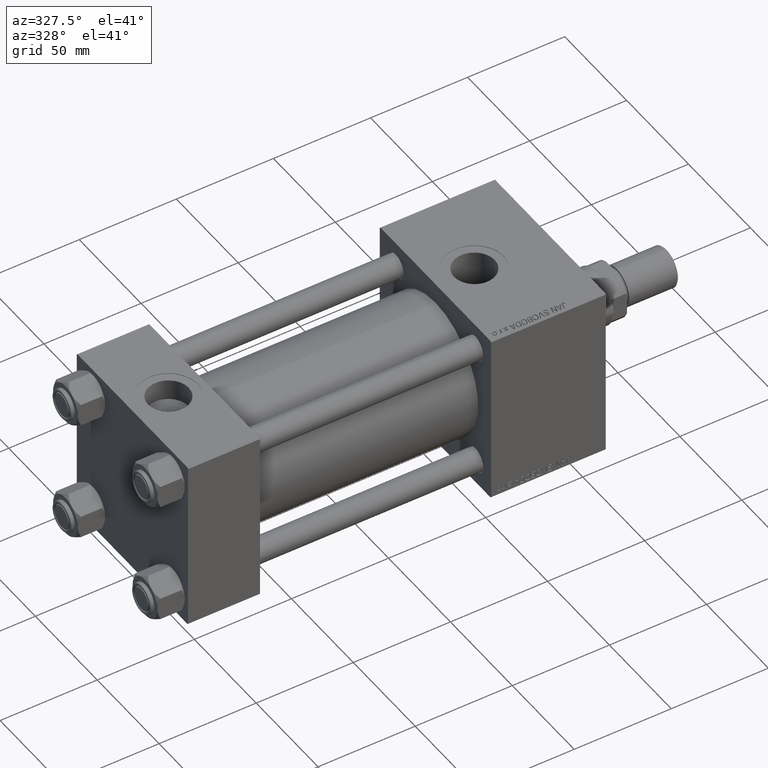
[diagram: clean part render]
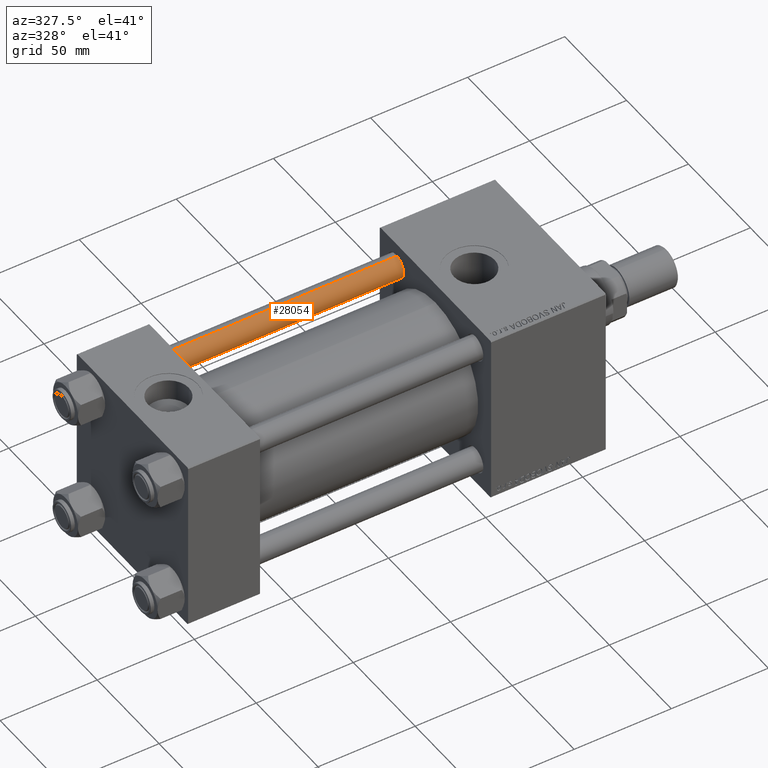
[diagram: same view with one face highlighted and labeled with its STEP entity id]
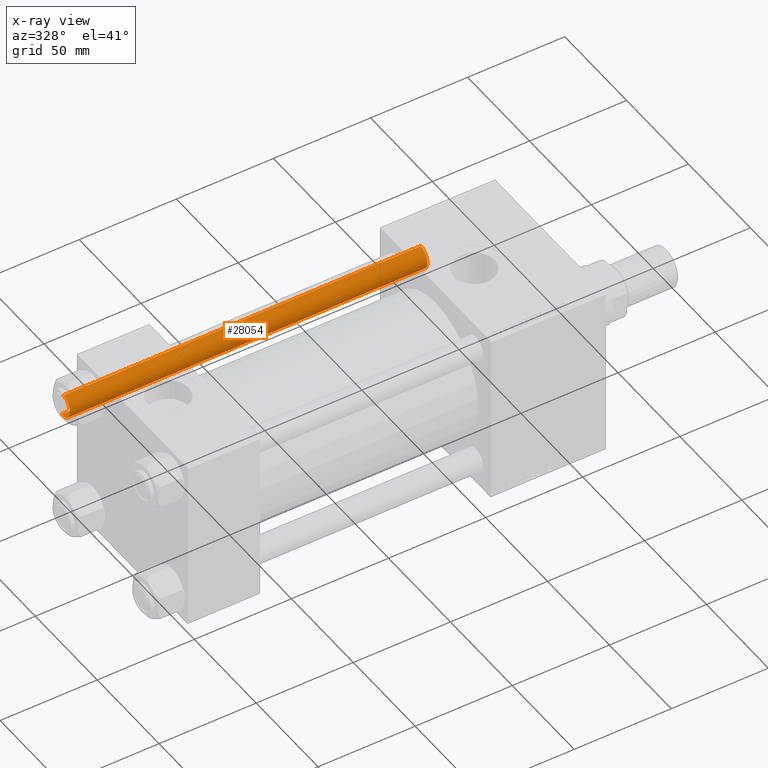
[diagram: x-ray of the same camera — body ghosted, the highlighted face saturated]
A machine part, auxiliary view. The second image highlights one B-rep face of the part: STEP entity #28054.
The next image is the same camera in x-ray: the body ghosted, the highlighted face saturated — about 0% of this face is hidden behind the body in this view.
In plain terms, the highlighted cylindrical surface (edge-blend (fillet) strip) has radius 6 mm, axis along (-1, 0, 0).
Its self-contained STEP definition (entity closure, byte-faithful):
#2004 = EDGE_CURVE ( 'NONE', #19414, #21718, #42894, .T. ) ;
#2992 = CARTESIAN_POINT ( 'NONE',  ( 0.000000000000000000, 0.000000000000000000, 185.0000000000000000 ) ) ;
#4097 = DIRECTION ( 'NONE',  ( -0.000000000000000000, -0.000000000000000000, -1.000000000000000000 ) ) ;
#4226 = EDGE_CURVE ( 'NONE', #19414, #6018, #38579, .T. ) ;
#6018 = VERTEX_POINT ( 'NONE', #18806 ) ;
#7771 = ORIENTED_EDGE ( 'NONE', *, *, #27123, .T. ) ;
#10289 = CARTESIAN_POINT ( 'NONE',  ( 6.000000000000000888, 7.347880794884120722E-16, 0.5000000000000281997 ) ) ;
#10464 = DIRECTION ( 'NONE',  ( -0.000000000000000000, -0.000000000000000000, -1.000000000000000000 ) ) ;
#12223 = AXIS2_PLACEMENT_3D ( 'NONE', #48683, #25039, #36840 ) ;
#16444 = AXIS2_PLACEMENT_3D ( 'NONE', #38252, #42101, #22600 ) ;
#16816 = VECTOR ( 'NONE', #25451, 1000.000000000000000 ) ;
#17674 = EDGE_CURVE ( 'NONE', #6018, #38755, #49618, .T. ) ;
#18806 = CARTESIAN_POINT ( 'NONE',  ( -6.000000000000000888, 0.000000000000000000, 184.5000000000000000 ) ) ;
#19414 = VERTEX_POINT ( 'NONE', #25798 ) ;
#19611 = AXIS2_PLACEMENT_3D ( 'NONE', #2992, #10464, #37689 ) ;
#21718 = VERTEX_POINT ( 'NONE', #10289 ) ;
#22032 = CYLINDRICAL_SURFACE ( 'NONE', #19611, 6.000000000000000888 ) ;
#22600 = DIRECTION ( 'NONE',  ( 1.000000000000000000, 0.000000000000000000, 0.000000000000000000 ) ) ;
#22670 = EDGE_LOOP ( 'NONE', ( #29325, #27438, #32516, #7771 ) ) ;
#25039 = DIRECTION ( 'NONE',  ( -0.000000000000000000, -0.000000000000000000, 1.000000000000000000 ) ) ;
#25451 = DIRECTION ( 'NONE',  ( -0.000000000000000000, -0.000000000000000000, -1.000000000000000000 ) ) ;
#25798 = CARTESIAN_POINT ( 'NONE',  ( 6.000000000000000888, 7.347880794884120722E-16, 184.5000000000000000 ) ) ;
#26793 = CARTESIAN_POINT ( 'NONE',  ( -6.000000000000000888, 0.000000000000000000, 0.5000000000000281997 ) ) ;
#27123 = EDGE_CURVE ( 'NONE', #38755, #21718, #27810, .T. ) ;
#27438 = ORIENTED_EDGE ( 'NONE', *, *, #4226, .T. ) ;
#27810 = CIRCLE ( 'NONE', #12223, 6.000000000000000888 ) ;
#28054 = ADVANCED_FACE ( 'NONE', ( #29474 ), #22032, .T. ) ;
#29325 = ORIENTED_EDGE ( 'NONE', *, *, #2004, .F. ) ;
#29474 = FACE_OUTER_BOUND ( 'NONE', #22670, .T. ) ;
#30080 = CARTESIAN_POINT ( 'NONE',  ( -6.000000000000000888, 0.000000000000000000, 185.0000000000000000 ) ) ;
#32516 = ORIENTED_EDGE ( 'NONE', *, *, #17674, .T. ) ;
#35203 = VECTOR ( 'NONE', #4097, 1000.000000000000000 ) ;
#36840 = DIRECTION ( 'NONE',  ( 1.000000000000000000, 0.000000000000000000, 0.000000000000000000 ) ) ;
#37689 = DIRECTION ( 'NONE',  ( -1.000000000000000000, 0.000000000000000000, 0.000000000000000000 ) ) ;
#38252 = CARTESIAN_POINT ( 'NONE',  ( 0.000000000000000000, 0.000000000000000000, 184.5000000000000000 ) ) ;
#38579 = CIRCLE ( 'NONE', #16444, 6.000000000000000888 ) ;
#38755 = VERTEX_POINT ( 'NONE', #26793 ) ;
#39278 = CARTESIAN_POINT ( 'NONE',  ( 6.000000000000000888, 7.347880794884120722E-16, 185.0000000000000000 ) ) ;
#42101 = DIRECTION ( 'NONE',  ( 0.000000000000000000, 0.000000000000000000, -1.000000000000000000 ) ) ;
#42894 = LINE ( 'NONE', #39278, #35203 ) ;
#48683 = CARTESIAN_POINT ( 'NONE',  ( 0.000000000000000000, 0.000000000000000000, 0.5000000000000281997 ) ) ;
#49618 = LINE ( 'NONE', #30080, #16816 ) ;